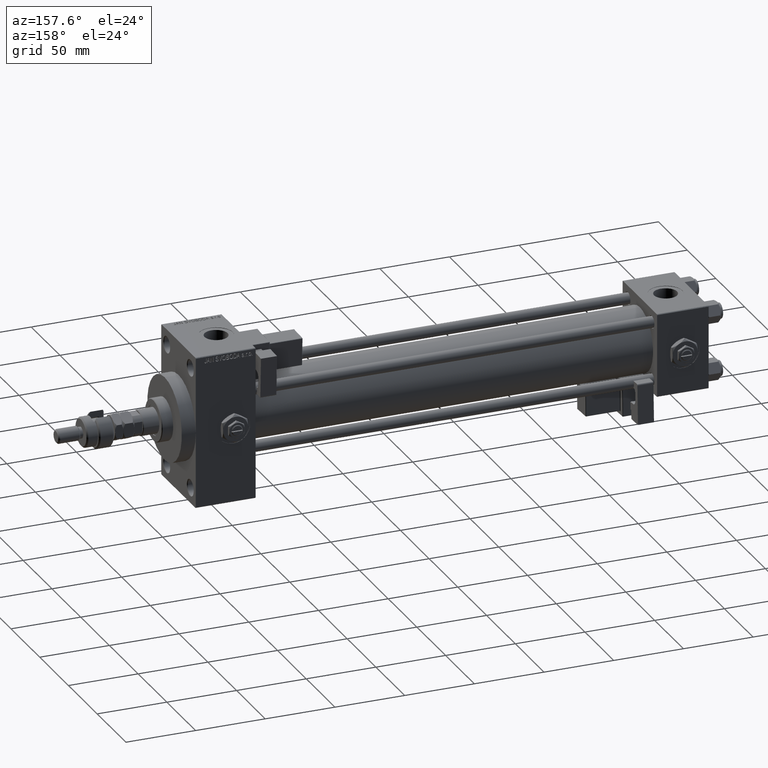
[diagram: clean part render]
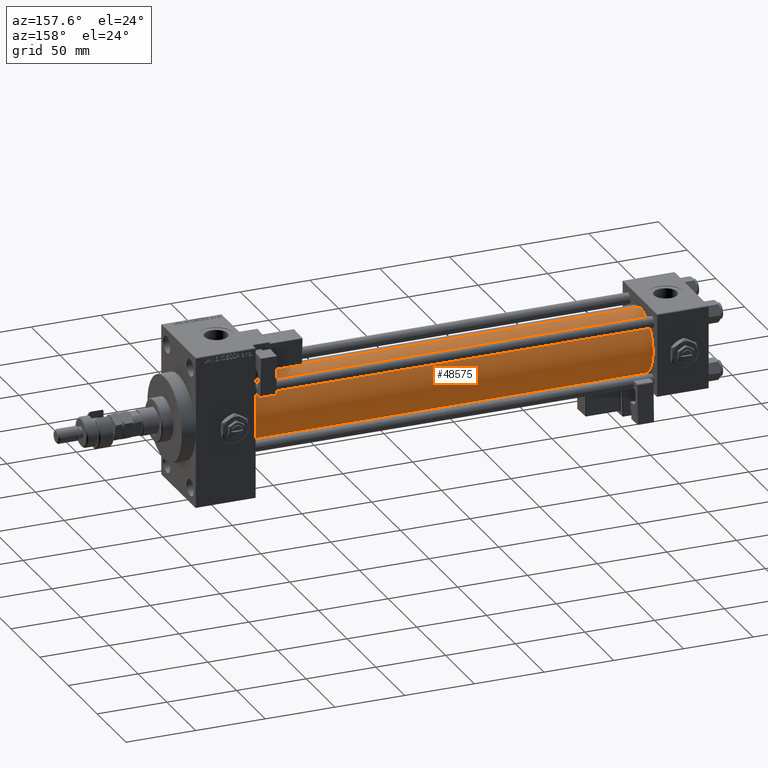
[diagram: same view with one face highlighted and labeled with its STEP entity id]
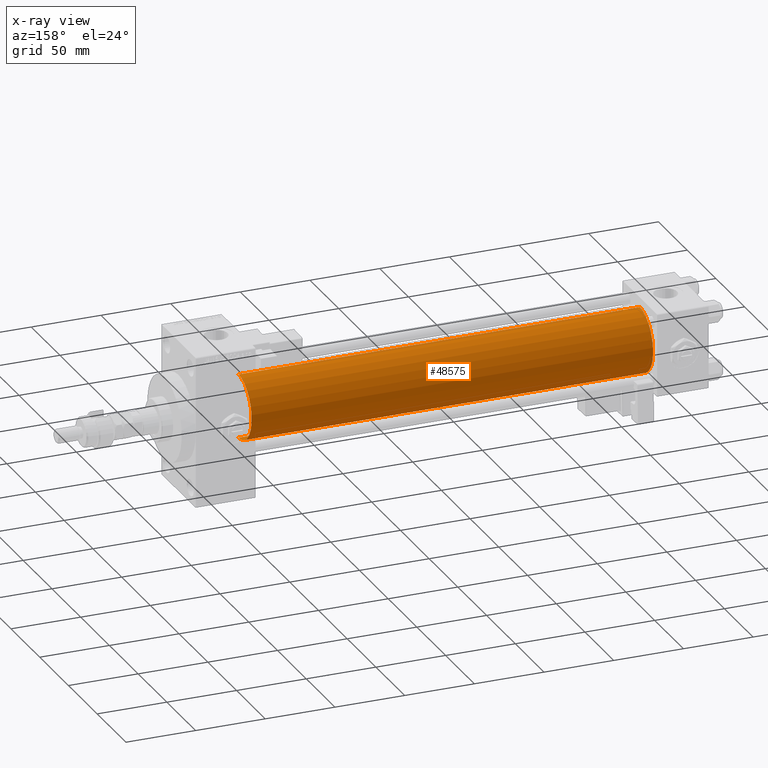
[diagram: x-ray of the same camera — body ghosted, the highlighted face saturated]
A machine part, auxiliary view. The second image highlights one B-rep face of the part: STEP entity #48575.
The next image is the same camera in x-ray: the body ghosted, the highlighted face saturated — about 0% of this face is hidden behind the body in this view.
In plain terms, the highlighted cylindrical surface (edge-blend (fillet) strip) has radius 23 mm, axis along (-1, -0, -0).
Its self-contained STEP definition (entity closure, byte-faithful):
#3249 = DIRECTION ( 'NONE',  ( -1.000000000000000000, -0.000000000000000000, -0.000000000000000000 ) ) ;
#3948 = EDGE_CURVE ( 'NONE', #31298, #42065, #21828, .T. ) ;
#6772 = DIRECTION ( 'NONE',  ( -1.000000000000000000, -0.000000000000000000, -0.000000000000000000 ) ) ;
#9330 = AXIS2_PLACEMENT_3D ( 'NONE', #45072, #11847, #24469 ) ;
#11078 = DIRECTION ( 'NONE',  ( 1.000000000000000000, 0.000000000000000000, 0.000000000000000000 ) ) ;
#11616 = VECTOR ( 'NONE', #3249, 1000.000000000000000 ) ;
#11847 = DIRECTION ( 'NONE',  ( 1.000000000000000000, -0.000000000000000000, 0.000000000000000000 ) ) ;
#14356 = ORIENTED_EDGE ( 'NONE', *, *, #3948, .F. ) ;
#14700 = ORIENTED_EDGE ( 'NONE', *, *, #38473, .T. ) ;
#16708 = DIRECTION ( 'NONE',  ( -1.000000000000000000, -0.000000000000000000, -0.000000000000000000 ) ) ;
#18940 = ORIENTED_EDGE ( 'NONE', *, *, #28613, .T. ) ;
#21828 = CIRCLE ( 'NONE', #39364, 23.00000000000000000 ) ;
#22936 = CARTESIAN_POINT ( 'NONE',  ( 324.9999999999999432, 2.146024240737016609E-16, -23.00000000000000000 ) ) ;
#22971 = VERTEX_POINT ( 'NONE', #27801 ) ;
#23241 = DIRECTION ( 'NONE',  ( 0.000000000000000000, 0.000000000000000000, 1.000000000000000000 ) ) ;
#23662 = AXIS2_PLACEMENT_3D ( 'NONE', #49321, #6772, #23241 ) ;
#24469 = DIRECTION ( 'NONE',  ( 0.000000000000000000, 0.000000000000000000, 1.000000000000000000 ) ) ;
#27507 = ORIENTED_EDGE ( 'NONE', *, *, #54266, .F. ) ;
#27801 = CARTESIAN_POINT ( 'NONE',  ( 36.99999999999997868, -2.602085213965210642E-15, 23.00000000000000000 ) ) ;
#28613 = EDGE_CURVE ( 'NONE', #32008, #22971, #32995, .T. ) ;
#29068 = CARTESIAN_POINT ( 'NONE',  ( 324.9999999999999432, 2.146024240737016609E-16, -23.00000000000000000 ) ) ;
#31298 = VERTEX_POINT ( 'NONE', #22936 ) ;
#31954 = CARTESIAN_POINT ( 'NONE',  ( 324.9999999999999432, -2.602085213965210642E-15, 0.000000000000000000 ) ) ;
#32008 = VERTEX_POINT ( 'NONE', #40649 ) ;
#32995 = CIRCLE ( 'NONE', #9330, 23.00000000000000000 ) ;
#36343 = DIRECTION ( 'NONE',  ( 0.000000000000000000, 0.000000000000000000, -1.000000000000000000 ) ) ;
#37578 = LINE ( 'NONE', #29068, #42608 ) ;
#38473 = EDGE_CURVE ( 'NONE', #31298, #32008, #37578, .T. ) ;
#39364 = AXIS2_PLACEMENT_3D ( 'NONE', #31954, #11078, #36343 ) ;
#40649 = CARTESIAN_POINT ( 'NONE',  ( 36.99999999999997868, 2.146024240737016609E-16, -23.00000000000000000 ) ) ;
#41152 = CARTESIAN_POINT ( 'NONE',  ( 324.9999999999999432, -2.602085213965210642E-15, 23.00000000000000000 ) ) ;
#41687 = LINE ( 'NONE', #41152, #11616 ) ;
#42065 = VERTEX_POINT ( 'NONE', #47746 ) ;
#42608 = VECTOR ( 'NONE', #16708, 1000.000000000000000 ) ;
#44386 = CYLINDRICAL_SURFACE ( 'NONE', #23662, 23.00000000000000000 ) ;
#45072 = CARTESIAN_POINT ( 'NONE',  ( 36.99999999999997868, -2.602085213965210642E-15, 0.000000000000000000 ) ) ;
#47746 = CARTESIAN_POINT ( 'NONE',  ( 324.9999999999999432, -2.602085213965210642E-15, 23.00000000000000000 ) ) ;
#48575 = ADVANCED_FACE ( 'NONE', ( #49053 ), #44386, .T. ) ;
#49053 = FACE_OUTER_BOUND ( 'NONE', #51173, .T. ) ;
#49321 = CARTESIAN_POINT ( 'NONE',  ( 324.9999999999999432, -2.602085213965210642E-15, 0.000000000000000000 ) ) ;
#51173 = EDGE_LOOP ( 'NONE', ( #14356, #14700, #18940, #27507 ) ) ;
#54266 = EDGE_CURVE ( 'NONE', #42065, #22971, #41687, .T. ) ;